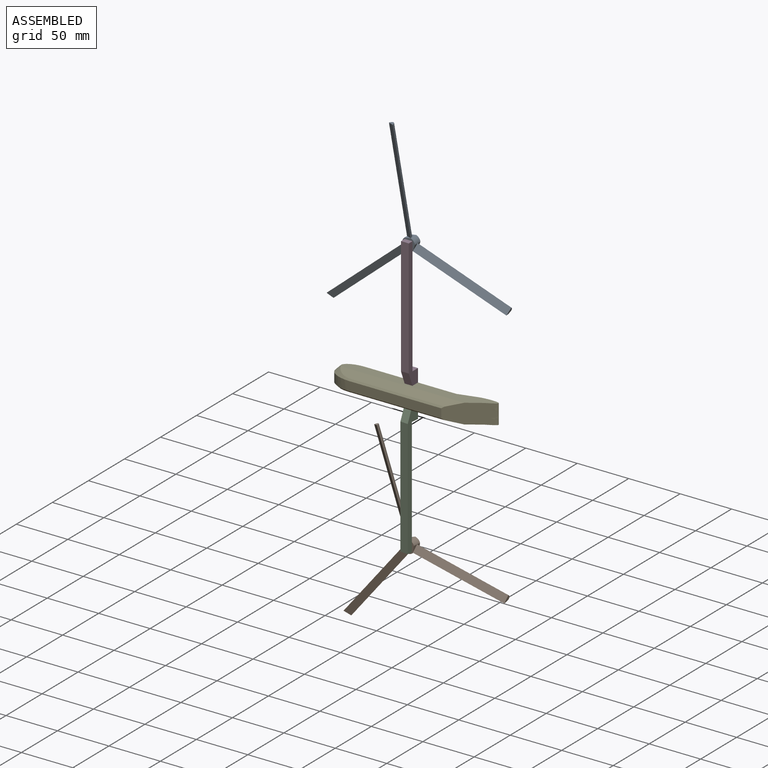
[diagram: assembled view]
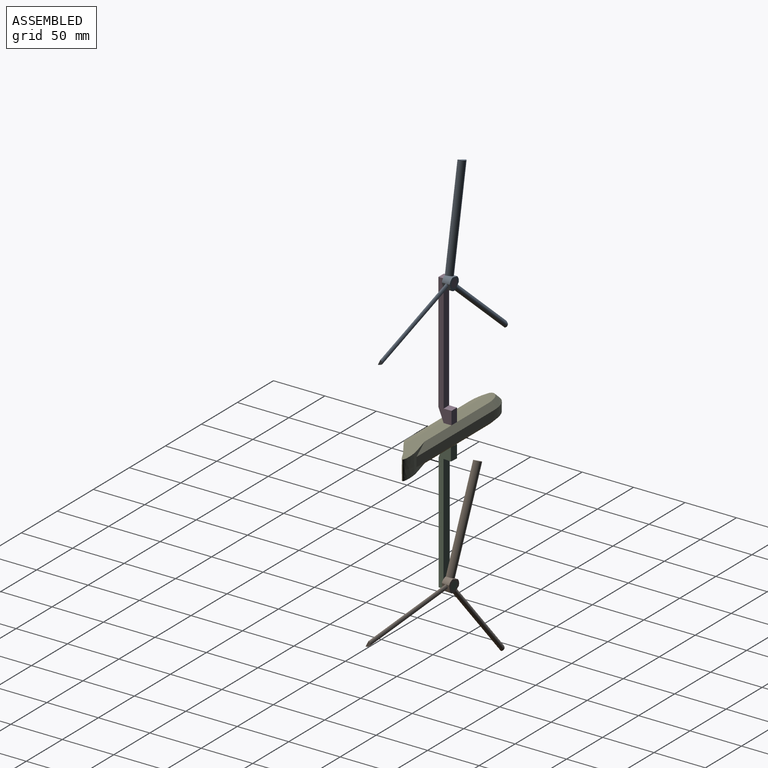
[diagram: assembled view, second angle]
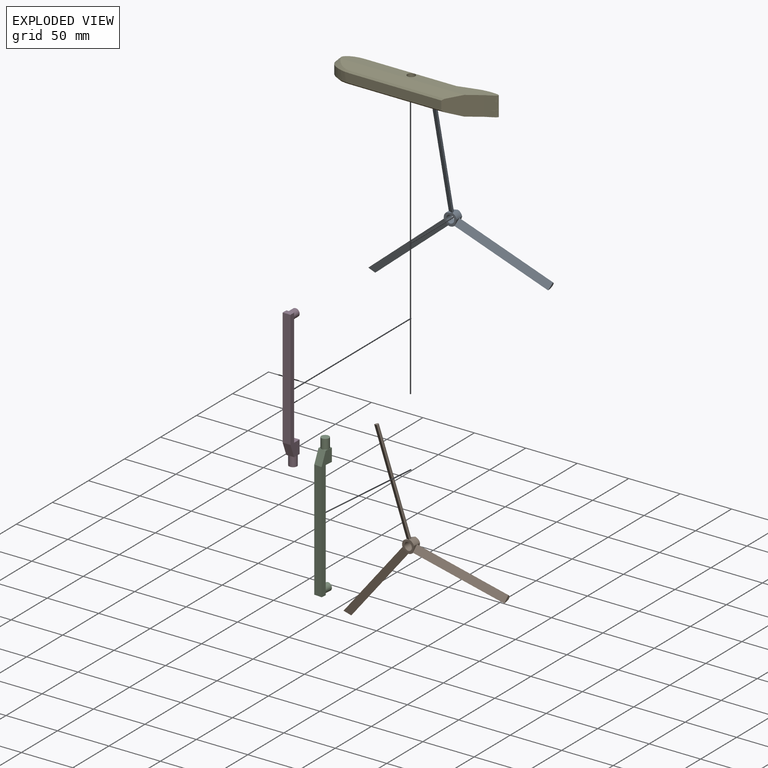
[diagram: exploded view]
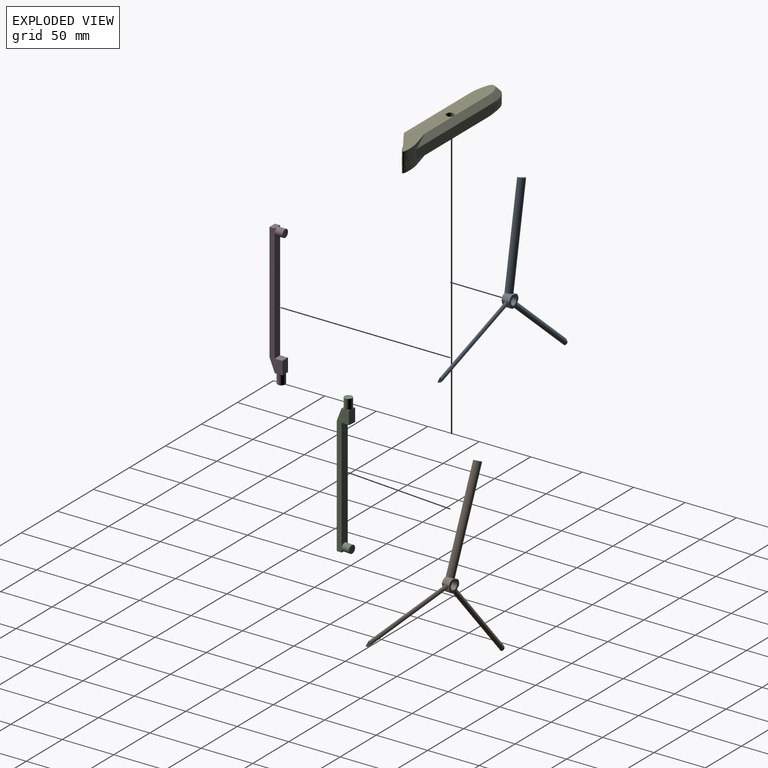
[diagram: exploded view, second angle]
ASSEMBLY  parts=5 mates=4
PART A: 24 faces, bbox 176.9x169.5x7.6 mm
  f0: plane 5.98x3.81mm, normal (0.94,0.33,0), area 12.1mm2, adj f5,f11,f16
  f1: plane 6.24x3.81mm, normal (-0.18,-0.98,0), area 12.1mm2, adj f4,f11,f14
  f2: plane 7.62x6.24mm, normal (-0.18,-0.98,0), area 19.8mm2, adj f4,f5,f10,f18,f22
  f3: plane 4.83x4.12mm, normal (-0.76,0.65,0), area 12.1mm2, adj f7,f11,f12
  f4: cylinder r=6.35mm len=7.62mm, axis (0,0,-1), area 50.7mm2, adj f1,f2,f8,f10,f11
  f5: cylinder r=6.35mm len=7.62mm, axis (0,0,-1), area 50.7mm2, adj f0,f2,f6,f10,f11
  f6: plane 7.62x5.98mm, normal (0.94,0.33,0), area 19.8mm2, adj f5,f7,f10,f19,f21
  f7: cylinder r=6.35mm len=7.62mm, axis (0,0,-1), area 50.7mm2, adj f3,f6,f8,f10,f11
  f8: plane 7.62x4.83mm, normal (-0.76,0.65,0), area 19.8mm2, adj f4,f7,f10,f20,f23
  f9: cylinder r=3.81mm len=7.62mm, axis (0,0,-1), area 182.4mm2, adj f10,f11
  f10: plane 12.59x12.33mm, normal (0,0,1), area 70.1mm2, adj f2,f4,f5,f6,f7,f8,f9
  f11: plane 12.59x12.33mm, normal (0,0,-1), area 70.1mm2, adj f0,f1,f3,f4,f5,f7,f9
  f12: plane 77.55x67.48mm, normal (0.33,0.39,-0.86), area 714.8mm2, adj f3,f13,f20,f23
  f13: plane 5.55x4.83mm, normal (-0.76,0.65,0), area 16.5mm2, adj f12,f20,f23
  f14: plane 96.07x23.79mm, normal (-0.51,0.09,-0.86), area 714.8mm2, adj f1,f15,f18,f22
  f15: plane 6.24x5.55mm, normal (-0.18,-0.98,0), area 16.5mm2, adj f14,f18,f22
  f16: plane 93.09x38.25mm, normal (0.17,-0.48,-0.86), area 714.8mm2, adj f0,f17,f19,f21
  f17: plane 5.98x5.55mm, normal (0.94,0.33,0), area 16.5mm2, adj f16,f19,f21
  f18: cylinder r=7.62mm len=95.3mm, axis (-0.18,-0.98,0), area 513.5mm2, adj f2,f14,f15,f22
  f19: cylinder r=7.62mm len=91.67mm, axis (0.94,0.33,0), area 513.5mm2, adj f6,f16,f17,f21
  f20: cylinder r=7.62mm len=74.8mm, axis (-0.76,0.65,0), area 513.5mm2, adj f8,f12,f13,f23
  f21: cylinder r=2.54mm len=92.39mm, axis (0.94,0.33,0), area 503.5mm2, adj f6,f16,f17,f19
  f22: cylinder r=2.54mm len=95.68mm, axis (-0.18,-0.98,0), area 503.5mm2, adj f2,f14,f15,f18
  f23: cylinder r=2.54mm len=76.18mm, axis (-0.76,0.65,0), area 503.5mm2, adj f8,f12,f13,f20
PART B: same geometry as A
PART C: 18 faces, bbox 136.5x12.7x7.6 mm
  f0: plane 3.81x3.81mm, normal (0,-1,0), area 3.1mm2, adj f11,f13,f16
  f1: plane 3.81x3.81mm, normal (0,-1,0), area 3.1mm2, adj f11,f12,f16
  f2: plane 3.81x3.81mm, normal (-1,0,0), area 3.1mm2, adj f6,f12,f14
  f3: plane 3.81x3.81mm, normal (-1,0,0), area 3.1mm2, adj f6,f13,f14
  f4: plane 3.81x3.81mm, normal (-1,0,0), area 3.1mm2, adj f8,f13,f14
  f5: plane 114.3x7.62mm, normal (0,1,0), area 871mm2, adj f6,f11,f12,f13
  f6: plane 12.7x7.62mm, normal (-0.37,0.93,0), area 104.2mm2, adj f2,f3,f5,f12,f13
  f7: plane 3.81x3.81mm, normal (-1,0,0), area 3.1mm2, adj f8,f12,f14
  f8: plane 12.7x7.62mm, normal (0,-1,0), area 96.8mm2, adj f4,f7,f9,f12,f13
  f9: plane 7.62x7.62mm, normal (1,0,0), area 58.1mm2, adj f8,f10,f12,f13
  f10: plane 110.49x7.62mm, normal (0,-1,0), area 819.1mm2, adj f9,f12,f13,f16
  f11: plane 7.62x5.08mm, normal (1,0,0), area 38.7mm2, adj f0,f1,f5,f12,f13
  f12: plane 127x12.7mm, normal (0,0,1), area 709.7mm2, adj f1,f2,f5,f6,f7,f8,f9,f10
  f13: plane 127x12.7mm, normal (0,0,-1), area 709.7mm2, adj f0,f3,f4,f5,f6,f8,f9,f10
  f14: cylinder r=3.81mm len=9.53mm, axis (1,0,0), area 228mm2, adj f2,f3,f4,f7,f15
  f15: plane 7.62x7.62mm, normal (-1,0,0), area 45.6mm2, adj f14
  f16: cylinder r=3.81mm len=7.62mm, axis (0,1,0), area 182.4mm2, adj f0,f1,f10,f17
  f17: plane 7.62x7.62mm, normal (0,-1,0), area 45.6mm2, adj f16
PART D: same geometry as C
PART E: 18 faces, bbox 150.2x27.6x19.4 mm
  f0: extruded ~25.4x22.23mm, area 496.8mm2, adj f1,f5,f9,f12
  f1: plane 88.9x8.89mm, normal (0,-1,0), area 790.3mm2, adj f0,f2,f8,f13
  f2: plane 28.58x19.05mm, normal (0.55,-0.83,0), area 574.8mm2, adj f1,f3,f6,f7,f8,f13,f16,f17
  f3: extruded ~19.05x9.57mm, area 224.2mm2, adj f2,f4,f6,f7
  f4: extruded ~37.66x19.05mm, area 469.2mm2, adj f3,f5,f6,f7,f10,f11
  f5: plane 107.95x8.89mm, normal (0,1,0), area 959.7mm2, adj f0,f4,f10,f11
  f6: plane 145.11x17.53mm, normal (0,0,1), area 1382.9mm2, adj f2,f3,f4,f9,f10,f14,f15,f16
  f7: plane 145.13x17.55mm, normal (0,0,-1), area 1382.9mm2, adj f2,f3,f4,f11,f12,f14,f15,f17
  f8: plane 91.13x1.49mm, normal (0,-0.71,0.71), area 189.4mm2, adj f1,f2,f9,f16
  f9: bspline ~25.4x22.24mm, area 282.9mm2, adj f0,f6,f8,f10,f16
  f10: plane 107.95x5.08mm, normal (0,0.71,0.71), area 708.7mm2, adj f4,f5,f6,f9
  f11: plane 107.95x5.08mm, normal (0,0.71,-0.71), area 708.7mm2, adj f4,f5,f7,f12
  f12: bspline ~25.4x22.24mm, area 282.8mm2, adj f0,f7,f11,f13,f17
  f13: plane 91.13x1.49mm, normal (0,-0.71,-0.71), area 189.4mm2, adj f1,f2,f12,f17
  f14: plane 19.05x1.17mm, normal (0.16,0.99,0), area 22.6mm2, adj f6,f7,f15
  f15: cylinder r=3.81mm len=19.05mm, axis (0,0,1), area 433.3mm2, adj f6,f7,f14
  f16: plane 120.01x8.67mm, normal (0,-0.38,0.92), area 1025.7mm2, adj f2,f6,f8,f9
  f17: plane 120.01x8.67mm, normal (0,-0.38,-0.92), area 1025.7mm2, adj f2,f7,f12,f13
PLACE A rot(axis=(-1,0,0),90deg) t=(-11.82,-60.05,115.94)mm
PLACE B rot(axis=(-0.99,-0.04,-0.13),91deg) t=(-12.16,-60.03,-149.49)mm
PLACE C rot(axis=(-0.71,0.03,0.71),176.3deg) t=(-9.82,-76.51,-80.93)mm
PLACE D rot(axis=(0.71,0,0.71),180deg) t=(-15.63,-76.25,47.38)mm
PLACE E t=(-40.23,-50.81,-26.3)mm fixed
MATE revolute B.f9 <-> C.f16  axis (0.09,1,0) through (-11.47,-52.44,-149.49)mm
MATE revolute D.f14 <-> C.f14  axis (0,0,-1) through (-11.82,-56.24,-16.77)mm
MATE revolute D.f14 <-> E.f15  axis (0,0,1) through (-11.82,-56.24,-7.25)mm
MATE revolute D.f16 <-> A.f9  axis (0,1,0) through (-11.82,-52.43,115.94)mm
